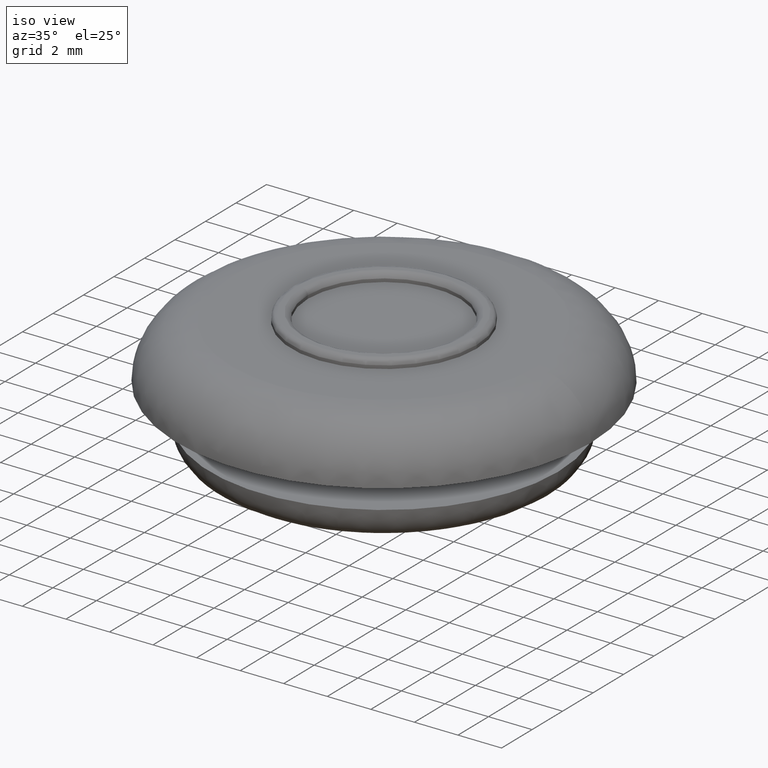
[diagram: clean part render]
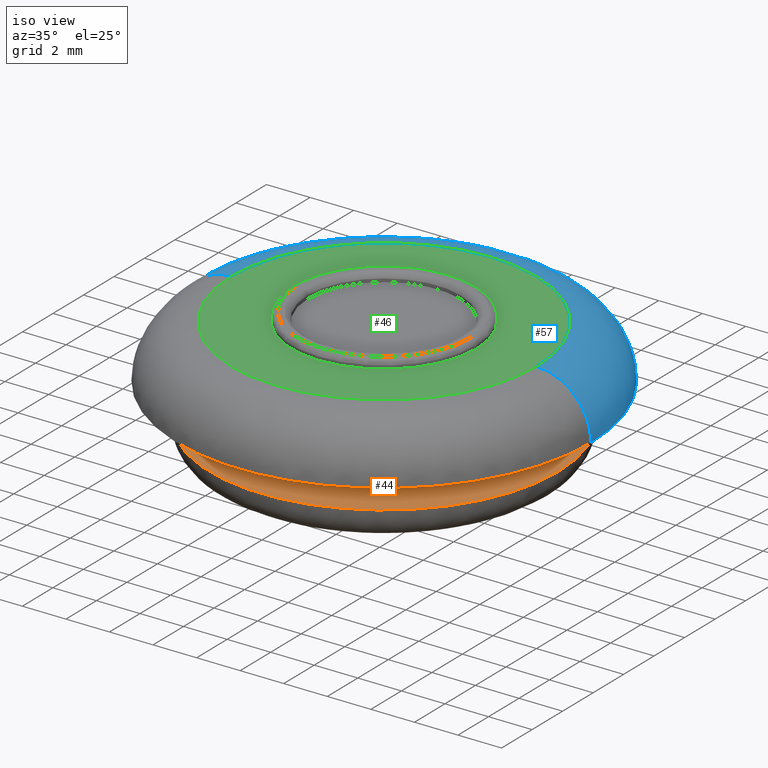
[diagram: same view with three faces highlighted in distinct colors, each labeled with its STEP entity id]
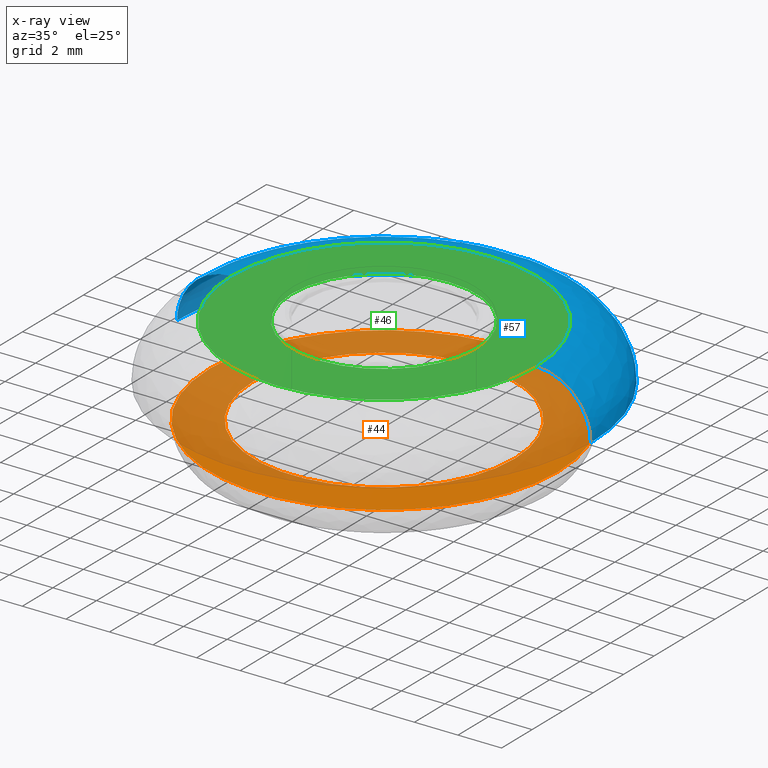
[diagram: x-ray of the same camera — body ghosted, the three highlighted faces saturated]
A machine part, iso view with three faces highlighted in distinct colors.
The next image is the same camera in x-ray (body ghosted, the three faces saturated) — at least one of them is partly hidden behind the body in this view.
Their STEP definitions:

[orange] entity #44 — the highlighted planar face has unit normal (0, 0, 1).
#44=ADVANCED_FACE('',(#106,#107),#105,.T.);
#105=PLANE('',#323);
#106=FACE_OUTER_BOUND('',#324,.T.);
#107=FACE_BOUND('',#325,.T.);
#320=CARTESIAN_POINT('',(-1.04000000000E+001,-1.66276877527E+001,-3.60000000000E+000));
#321=DIRECTION('',(0.00000000000E+000,0.00000000000E+000,1.00000000000E+000));
#322=DIRECTION('',(1.00000000000E+000,0.00000000000E+000,-0.00000000000E+000));
#323=AXIS2_PLACEMENT_3D('',#320,#321,#322);
#324=EDGE_LOOP('',(#598,#599));
#325=EDGE_LOOP('',(#600,#601));
#598=ORIENTED_EDGE('',*,*,#686,.F.);
#599=ORIENTED_EDGE('',*,*,#687,.F.);
#600=ORIENTED_EDGE('',*,*,#688,.T.);
#601=ORIENTED_EDGE('',*,*,#689,.T.);
#686=EDGE_CURVE('',#802,#803,#804,.T.);
#687=EDGE_CURVE('',#803,#802,#810,.T.);
#688=EDGE_CURVE('',#816,#817,#818,.T.);
#689=EDGE_CURVE('',#817,#816,#824,.T.);
#802=VERTEX_POINT('',#1070);
#803=VERTEX_POINT('',#1071);
#804=CIRCLE('',#1075,8.00000000000E+000);
#810=CIRCLE('',#1079,8.00000000000E+000);
#816=VERTEX_POINT('',#1080);
#817=VERTEX_POINT('',#1081);
#818=CIRCLE('',#1085,6.00000000000E+000);
#824=CIRCLE('',#1089,6.00000000000E+000);
#1070=CARTESIAN_POINT('',(8.00000000000E+000,2.96059473233E-016,-3.60000000000E+000));
#1071=CARTESIAN_POINT('',(-8.00000000000E+000,-1.86786350276E-015,-3.60000000000E+000));
#1072=CARTESIAN_POINT('',(0.00000000000E+000,0.00000000000E+000,-3.60000000000E+000));
#1073=DIRECTION('',(0.00000000000E+000,0.00000000000E+000,-1.00000000000E+000));
#1074=DIRECTION('',(-1.00000000000E+000,-1.11022302463E-016,-0.00000000000E+000));
#1075=AXIS2_PLACEMENT_3D('',#1072,#1073,#1074);
#1076=CARTESIAN_POINT('',(0.00000000000E+000,0.00000000000E+000,-3.60000000000E+000));
#1077=DIRECTION('',(0.00000000000E+000,0.00000000000E+000,-1.00000000000E+000));
#1078=DIRECTION('',(-1.00000000000E+000,-1.11022302463E-016,-0.00000000000E+000));
#1079=AXIS2_PLACEMENT_3D('',#1076,#1077,#1078);
#1080=CARTESIAN_POINT('',(6.00000000000E+000,7.34763812293E-016,-3.60000000000E+000));
#1081=CARTESIAN_POINT('',(-6.00000000000E+000,5.92118946467E-016,-3.60000000000E+000));
#1082=CARTESIAN_POINT('',(0.00000000000E+000,0.00000000000E+000,-3.60000000000E+000));
#1083=DIRECTION('',(0.00000000000E+000,0.00000000000E+000,-1.00000000000E+000));
#1084=DIRECTION('',(1.00000000000E+000,-0.00000000000E+000,-0.00000000000E+000));
#1085=AXIS2_PLACEMENT_3D('',#1082,#1083,#1084);
#1086=CARTESIAN_POINT('',(0.00000000000E+000,0.00000000000E+000,-3.60000000000E+000));
#1087=DIRECTION('',(0.00000000000E+000,0.00000000000E+000,-1.00000000000E+000));
#1088=DIRECTION('',(1.00000000000E+000,-0.00000000000E+000,-0.00000000000E+000));
#1089=AXIS2_PLACEMENT_3D('',#1086,#1087,#1088);

[blue] entity #57 — the highlighted face is a freeform B-spline surface patch.
#57=ADVANCED_FACE('',(#239),#238,.T.);
#238=( BOUNDED_SURFACE() B_SPLINE_SURFACE( 2,2,((#472,#473,#474,#475,#476),(#477,#478,#479,#480,#481),(#482,#483,#484,#485,#486),(#487,#488,#489,#490,#491),(#492,#493,#494,#495,#496)), .UNSPECIFIED.,.F.,.F.,.F.) B_SPLINE_SURFACE_WITH_KNOTS((3,2,3),(3,2,3),(0.00000000000E+000,5.00000000000E-001,1.00000000000E+000),(0.00000000000E+000,5.00000000000E-001,1.00000000000E+000), .UNSPECIFIED. ) GEOMETRIC_REPRESENTATION_ITEM() RATIONAL_B_SPLINE_SURFACE(((1.00000000000E+000,7.07106781186E-001,1.00000000000E+000,7.07106781186E-001,1.00000000000E+000),(7.07106781187E-001,5.00000000000E-001,7.07106781187E-001,5.00000000000E-001,7.07106781187E-001),(1.00000000000E+000,7.07106781186E-001,1.00000000000E+000,7.07106781186E-001,1.00000000000E+000),(7.07106781187E-001,5.00000000000E-001,7.07106781187E-001,5.00000000000E-001,7.07106781187E-001),(1.00000000000E+000,7.07106781186E-001,1.00000000000E+000,7.07106781186E-001,1.00000000000E+000))) REPRESENTATION_ITEM('') SURFACE() );
#239=FACE_OUTER_BOUND('',#497,.T.);
#472=CARTESIAN_POINT('',(-4.50000000000E+000,1.28805046877E-013,-2.00000000000E+000));
#473=CARTESIAN_POINT('',(-4.50000000000E+000,1.81158643174E-014,4.99999999999E-001));
#474=CARTESIAN_POINT('',(-7.00000000000E+000,4.64896677462E-014,5.00000000000E-001));
#475=CARTESIAN_POINT('',(-9.50000000000E+000,7.48634711751E-014,5.00000000001E-001));
#476=CARTESIAN_POINT('',(-9.50000000000E+000,1.85552653735E-013,-2.00000000000E+000));
#477=CARTESIAN_POINT('',(-4.50000000000E+000,4.50000000000E+000,-2.00000000000E+000));
#478=CARTESIAN_POINT('',(-4.50000000000E+000,4.50000000000E+000,5.00000000000E-001));
#479=CARTESIAN_POINT('',(-7.00000000000E+000,7.00000000000E+000,5.00000000000E-001));
#480=CARTESIAN_POINT('',(-9.50000000000E+000,9.50000000000E+000,5.00000000001E-001));
#481=CARTESIAN_POINT('',(-9.50000000000E+000,9.50000000000E+000,-2.00000000000E+000));
#482=CARTESIAN_POINT('',(5.07973006422E-014,4.50000000000E+000,-2.00000000000E+000));
#483=CARTESIAN_POINT('',(5.07973006422E-014,4.50000000000E+000,5.00000000000E-001));
#484=CARTESIAN_POINT('',(7.90180232211E-014,7.00000000000E+000,5.00000000000E-001));
#485=CARTESIAN_POINT('',(1.07238745800E-013,9.50000000000E+000,5.00000000001E-001));
#486=CARTESIAN_POINT('',(1.07238745800E-013,9.50000000000E+000,-2.00000000000E+000));
#487=CARTESIAN_POINT('',(4.50000000000E+000,4.50000000000E+000,-2.00000000000E+000));
#488=CARTESIAN_POINT('',(4.50000000000E+000,4.50000000000E+000,5.00000000000E-001));
#489=CARTESIAN_POINT('',(7.00000000000E+000,7.00000000000E+000,5.00000000000E-001));
#490=CARTESIAN_POINT('',(9.50000000000E+000,9.50000000000E+000,5.00000000001E-001));
#491=CARTESIAN_POINT('',(9.50000000000E+000,9.50000000000E+000,-2.00000000000E+000));
#492=CARTESIAN_POINT('',(4.50000000000E+000,2.72104455932E-014,-2.00000000000E+000));
#493=CARTESIAN_POINT('',(4.50000000000E+000,-8.34787369669E-014,4.99999999999E-001));
#494=CARTESIAN_POINT('',(7.00000000000E+000,-1.11546378696E-013,5.00000000000E-001));
#495=CARTESIAN_POINT('',(9.50000000000E+000,-1.39614020425E-013,5.00000000001E-001));
#496=CARTESIAN_POINT('',(9.50000000000E+000,-2.89248378650E-014,-2.00000000000E+000));
#497=EDGE_LOOP('',(#650,#651,#652,#653));
#650=ORIENTED_EDGE('',*,*,#691,.F.);
#651=ORIENTED_EDGE('',*,*,#712,.F.);
#652=ORIENTED_EDGE('',*,*,#695,.T.);
#653=ORIENTED_EDGE('',*,*,#713,.T.);
#691=EDGE_CURVE('',#831,#830,#838,.T.);
#695=EDGE_CURVE('',#859,#858,#866,.T.);
#712=EDGE_CURVE('',#859,#831,#974,.T.);
#713=EDGE_CURVE('',#858,#830,#980,.T.);
#830=VERTEX_POINT('',#1090);
#831=VERTEX_POINT('',#1091);
#838=CIRCLE('',#1099,9.50000000000E+000);
#858=VERTEX_POINT('',#1110);
#859=VERTEX_POINT('',#1111);
#866=CIRCLE('',#1119,7.00000000000E+000);
#974=(BOUNDED_CURVE() B_SPLINE_CURVE(2,(#1175,#1176,#1177),.UNSPECIFIED.,.F.,.F.) B_SPLINE_CURVE_WITH_KNOTS((3,3),(5.00000000000E-001,1.00000000000E+000),.UNSPECIFIED.) CURVE() GEOMETRIC_REPRESENTATION_ITEM() RATIONAL_B_SPLINE_CURVE((1.00000000000E+000,7.07106781186E-001,1.00000000000E+000)) REPRESENTATION_ITEM('') );
#980=(BOUNDED_CURVE() B_SPLINE_CURVE(3,(#1178,#1179,#1180,#1181,#1182),.UNSPECIFIED.,.F.,.F.) B_SPLINE_CURVE_WITH_KNOTS((4,1,4),(4.99999914688E-001,7.49999950873E-001,1.00000000000E+000),.UNSPECIFIED.) CURVE() GEOMETRIC_REPRESENTATION_ITEM() RATIONAL_B_SPLINE_CURVE((1.00000000000E+000,1.00000000000E+000,1.00000000000E+000,1.00000000000E+000,1.00000000000E+000)) REPRESENTATION_ITEM('') );
#1090=CARTESIAN_POINT('',(9.50000000000E+000,1.16337603613E-015,-2.00000000000E+000));
#1091=CARTESIAN_POINT('',(-9.50000000000E+000,1.82964754458E-013,-2.00000000000E+000));
#1096=CARTESIAN_POINT('',(0.00000000000E+000,0.00000000000E+000,-2.00000000000E+000));
#1097=DIRECTION('',(0.00000000000E+000,0.00000000000E+000,-1.00000000000E+000));
#1098=DIRECTION('',(1.00000000000E+000,-0.00000000000E+000,-0.00000000000E+000));
#1099=AXIS2_PLACEMENT_3D('',#1096,#1097,#1098);
#1110=CARTESIAN_POINT('',(7.00000000000E+000,0.00000000000E+000,5.00000000000E-001));
#1111=CARTESIAN_POINT('',(-7.00000000000E+000,-1.15328392091E-015,5.00000000000E-001));
#1116=CARTESIAN_POINT('',(0.00000000000E+000,0.00000000000E+000,5.00000000000E-001));
#1117=DIRECTION('',(0.00000000000E+000,0.00000000000E+000,-1.00000000000E+000));
#1118=DIRECTION('',(-1.00000000000E+000,-4.22942104619E-017,-0.00000000000E+000));
#1119=AXIS2_PLACEMENT_3D('',#1116,#1117,#1118);
#1175=CARTESIAN_POINT('',(-7.00000000000E+000,4.64896677462E-014,5.00000000000E-001));
#1176=CARTESIAN_POINT('',(-9.50000000000E+000,7.48634711751E-014,5.00000000001E-001));
#1177=CARTESIAN_POINT('',(-9.50000000000E+000,1.85552653735E-013,-2.00000000000E+000));
#1178=CARTESIAN_POINT('',(6.99999939675E+000,-1.11910474185E-013,5.00000000000E-001));
#1179=CARTESIAN_POINT('',(7.64862557614E+000,-1.19621855840E-013,5.05560307277E-001));
#1180=CARTESIAN_POINT('',(8.95844058995E+000,-1.10386742831E-013,-4.15589031986E-002));
#1181=CARTESIAN_POINT('',(9.50556015246E+000,-5.84882237858E-014,-1.35137378565E+000));
#1182=CARTESIAN_POINT('',(9.50000000000E+000,-2.96059473233E-014,-2.00000000000E+000));

[green] entity #46 — the highlighted planar face has unit normal (0, 0, 1).
#46=ADVANCED_FACE('',(#128,#129),#127,.T.);
#127=PLANE('',#335);
#128=FACE_OUTER_BOUND('',#336,.T.);
#129=FACE_BOUND('',#337,.T.);
#332=CARTESIAN_POINT('',(-9.10000000000E+000,-1.45492267836E+001,5.00000000000E-001));
#333=DIRECTION('',(0.00000000000E+000,0.00000000000E+000,1.00000000000E+000));
#334=DIRECTION('',(1.00000000000E+000,0.00000000000E+000,-0.00000000000E+000));
#335=AXIS2_PLACEMENT_3D('',#332,#333,#334);
#336=EDGE_LOOP('',(#606,#607));
#337=EDGE_LOOP('',(#608,#609));
#606=ORIENTED_EDGE('',*,*,#694,.F.);
#607=ORIENTED_EDGE('',*,*,#695,.F.);
#608=ORIENTED_EDGE('',*,*,#696,.T.);
#609=ORIENTED_EDGE('',*,*,#697,.T.);
#694=EDGE_CURVE('',#858,#859,#860,.T.);
#695=EDGE_CURVE('',#859,#858,#866,.T.);
#696=EDGE_CURVE('',#872,#873,#874,.T.);
#697=EDGE_CURVE('',#873,#872,#880,.T.);
#858=VERTEX_POINT('',#1110);
#859=VERTEX_POINT('',#1111);
#860=CIRCLE('',#1115,7.00000000000E+000);
#866=CIRCLE('',#1119,7.00000000000E+000);
#872=VERTEX_POINT('',#1120);
#873=VERTEX_POINT('',#1121);
#874=CIRCLE('',#1125,4.25000000000E+000);
#880=CIRCLE('',#1129,4.25000000000E+000);
#1110=CARTESIAN_POINT('',(7.00000000000E+000,0.00000000000E+000,5.00000000000E-001));
#1111=CARTESIAN_POINT('',(-7.00000000000E+000,-1.15328392091E-015,5.00000000000E-001));
#1112=CARTESIAN_POINT('',(0.00000000000E+000,0.00000000000E+000,5.00000000000E-001));
#1113=DIRECTION('',(0.00000000000E+000,0.00000000000E+000,-1.00000000000E+000));
#1114=DIRECTION('',(-1.00000000000E+000,-4.22942104619E-017,-0.00000000000E+000));
#1115=AXIS2_PLACEMENT_3D('',#1112,#1113,#1114);
#1116=CARTESIAN_POINT('',(0.00000000000E+000,0.00000000000E+000,5.00000000000E-001));
#1117=DIRECTION('',(0.00000000000E+000,0.00000000000E+000,-1.00000000000E+000));
#1118=DIRECTION('',(-1.00000000000E+000,-4.22942104619E-017,-0.00000000000E+000));
#1119=AXIS2_PLACEMENT_3D('',#1116,#1117,#1118);
#1120=CARTESIAN_POINT('',(4.25000000000E+000,5.20457700375E-016,5.00000000000E-001));
#1121=CARTESIAN_POINT('',(-4.25000000000E+000,2.96059473233E-016,5.00000000000E-001));
#1122=CARTESIAN_POINT('',(0.00000000000E+000,0.00000000000E+000,5.00000000000E-001));
#1123=DIRECTION('',(0.00000000000E+000,0.00000000000E+000,-1.00000000000E+000));
#1124=DIRECTION('',(1.00000000000E+000,-0.00000000000E+000,-0.00000000000E+000));
#1125=AXIS2_PLACEMENT_3D('',#1122,#1123,#1124);
#1126=CARTESIAN_POINT('',(0.00000000000E+000,0.00000000000E+000,5.00000000000E-001));
#1127=DIRECTION('',(0.00000000000E+000,0.00000000000E+000,-1.00000000000E+000));
#1128=DIRECTION('',(1.00000000000E+000,-0.00000000000E+000,-0.00000000000E+000));
#1129=AXIS2_PLACEMENT_3D('',#1126,#1127,#1128);